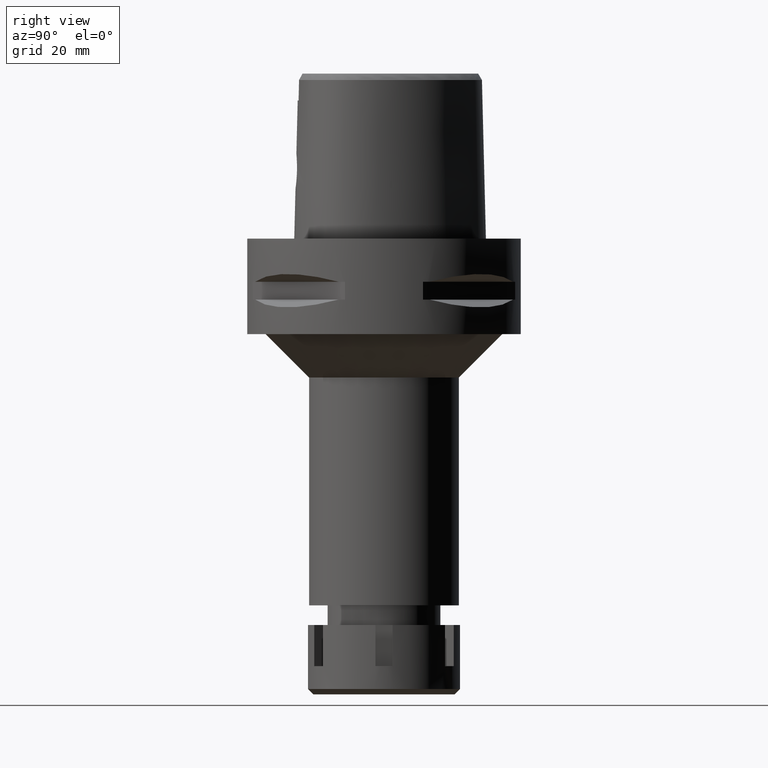
[diagram: clean part render]
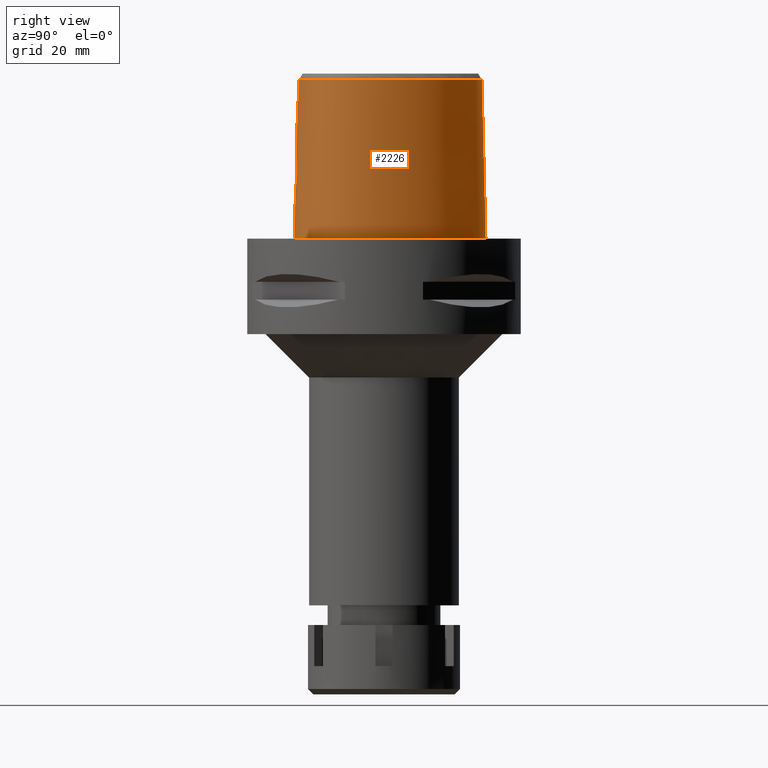
[diagram: same view with one face highlighted and labeled with its STEP entity id]
A machine part, right view. The second image highlights one B-rep face of the part: STEP entity #2226.
In plain terms, the highlighted face is a freeform B-spline surface patch.
Its self-contained STEP definition (entity closure, byte-faithful):
#16 = CARTESIAN_POINT ( 'NONE',  ( 2.808608589969339597, -20.24816661311874100, 12.58196638594038674 ) ) ;
#19 = CARTESIAN_POINT ( 'NONE',  ( 21.97832649445885522, -0.2810937470676990180, -6.704317588829104835E-07 ) ) ;
#79 = CARTESIAN_POINT ( 'NONE',  ( 11.23887130093999964, -18.91049775576999892, -0.7304374947548000208 ) ) ;
#102 = CARTESIAN_POINT ( 'NONE',  ( 22.05732875988168118, -6.847636721144406913, -6.704317588829104835E-07 ) ) ;
#103 = EDGE_CURVE ( 'NONE', #953, #2398, #1992, .T. ) ;
#104 = CARTESIAN_POINT ( 'NONE',  ( 21.26836750130999931, -8.910752271033999250, 11.93047908100000143 ) ) ;
#123 = CARTESIAN_POINT ( 'NONE',  ( 1.734379789051324838, -20.33697246834272931, 11.83436638252415030 ) ) ;
#128 = CARTESIAN_POINT ( 'NONE',  ( 18.89485298055000229, -12.27684388037000041, 37.25231223250000312 ) ) ;
#154 = CARTESIAN_POINT ( 'NONE',  ( 2.894506219204642239, -20.09690955887034036, 18.33274339089242844 ) ) ;
#185 = CARTESIAN_POINT ( 'NONE',  ( 2.871987183428478474, -20.09819914941969898, 18.35556622516749670 ) ) ;
#211 = CARTESIAN_POINT ( 'NONE',  ( 1.027682876504596221, -20.17741712424493272, 19.45809765211911113 ) ) ;
#217 = CARTESIAN_POINT ( 'NONE',  ( 2.438150638596000341, 22.68791656169999627, 24.59139565674999872 ) ) ;
#247 = CARTESIAN_POINT ( 'NONE',  ( 2.915545606163055581, -20.09570297646320469, 18.31119129212002150 ) ) ;
#252 = CARTESIAN_POINT ( 'NONE',  ( 4.750826265389000547, 21.65775817018000282, 37.25231223250000312 ) ) ;
#266 = CARTESIAN_POINT ( 'NONE',  ( -0.4439347144072000040, -19.74161855973000002, 37.25231223250000312 ) ) ;
#320 = CARTESIAN_POINT ( 'NONE',  ( 20.67704204634206278, -8.734985285293410229, 36.52186680739945501 ) ) ;
#352 = VERTEX_POINT ( 'NONE', #2081 ) ;
#369 = CARTESIAN_POINT ( 'NONE',  ( 14.17879765036999906, 15.44741200773000145, 11.93047908100000143 ) ) ;
#392 = CARTESIAN_POINT ( 'NONE',  ( 20.76670354476999947, 4.663413652418999966, -0.7304374947548000208 ) ) ;
#429 = CARTESIAN_POINT ( 'NONE',  ( 21.62788417781000305, -4.104079497439999891, 24.59139565674999872 ) ) ;
#466 = CARTESIAN_POINT ( 'NONE',  ( 2.853007646184912538, -20.24348516854156799, 12.62547111175370596 ) ) ;
#500 = CARTESIAN_POINT ( 'NONE',  ( 16.95889173633975133, -15.67838868510706973, -6.704317588829104835E-07 ) ) ;
#533 = CARTESIAN_POINT ( 'NONE',  ( 20.94844325444000077, -10.61175396809999860, -0.7304374947548000208 ) ) ;
#554 = CARTESIAN_POINT ( 'NONE',  ( 2.282207029739345305, -20.29700151028903932, 12.15162930636602745 ) ) ;
#556 = CARTESIAN_POINT ( 'NONE',  ( 2.041042029990999821E-08, -19.88004246002000031, 31.80000004972000127 ) ) ;
#558 = CARTESIAN_POINT ( 'NONE',  ( 21.94536986927999678, -4.102220498758000211, 11.93047908100000143 ) ) ;
#569 = CARTESIAN_POINT ( 'NONE',  ( 3.671249151389730514, -19.60525176641679579, 34.94790639287000289 ) ) ;
#578 = CARTESIAN_POINT ( 'NONE',  ( 4.002664568940697443, -20.07397280447635168, 14.86850854325290427 ) ) ;
#612 = CARTESIAN_POINT ( 'NONE',  ( 0.0000000000000000000, -20.18628283968999781, 19.55000000000000071 ) ) ;
#618 = CARTESIAN_POINT ( 'NONE',  ( 5.105252914380000284, 22.54305023809000019, -0.7304374947548000208 ) ) ;
#645 = CARTESIAN_POINT ( 'NONE',  ( 1.856701250897947686, -20.14848423775751129, 19.09993988373318885 ) ) ;
#651 = CARTESIAN_POINT ( 'NONE',  ( -0.4431573489233999741, 22.53713894815999907, 37.25231223250000312 ) ) ;
#677 = CARTESIAN_POINT ( 'NONE',  ( 7.259695517718999902, 20.78233578356999800, 24.59139565674999872 ) ) ;
#692 = CARTESIAN_POINT ( 'NONE',  ( -0.4520500680772000512, -20.37458455430000370, 11.93047908100000143 ) ) ;
#704 = CARTESIAN_POINT ( 'NONE',  ( 3.328551379878741834, -20.18727222454432280, 13.19186960104624440 ) ) ;
#721 = FACE_OUTER_BOUND ( 'NONE', #5571, .T. ) ;
#775 = CARTESIAN_POINT ( 'NONE',  ( 19.55745538001144368, -11.29150212658152341, 36.52186680739945501 ) ) ;
#813 = VERTEX_POINT ( 'NONE', #1455 ) ;
#825 = B_SPLINE_CURVE_WITH_KNOTS ( 'NONE', 3,
 ( #5289, #1842, #879, #4769, #4793, #500, #5232, #4815, #2243, #3090, #1336, #102, #930, #19, #4376, #1362, #1385, #3118, #960, #5176, #906, #4430, #3969 ),
 .UNSPECIFIED., .F., .F.,
 ( 4, 1, 1, 1, 1, 1, 1, 1, 1, 1, 1, 1, 1, 1, 1, 1, 1, 1, 1, 1, 4 ),
 ( 0.0000000000000000000, 0.08333333333343000138, 0.1666666666668000230, 0.2083333333333000081, 0.2500000000000000000, 0.2916666666666999919, 0.3125000000000000000, 0.3333333333333000081, 0.3541666666666999919, 0.3750000000000000000, 0.4166666666666000163, 0.4583333333332000326, 0.4999999999998999689, 0.5833333333332000326, 0.6666666666664999852, 0.7499999999998000488, 0.8333333333329999704, 0.8749999999997000177, 0.9166666666664000651, 0.9583333333329999704, 1.000000000000000000 ),
 .UNSPECIFIED. ) ;
#827 = CARTESIAN_POINT ( 'NONE',  ( 1.251533272181434064, -19.88005341395594883, 31.80000012137778498 ) ) ;
#830 = CARTESIAN_POINT ( 'NONE',  ( 6.344715575876000102, -20.31619964510000287, -0.7304374947548000208 ) ) ;
#854 = CARTESIAN_POINT ( 'NONE',  ( 20.36546124112000200, -11.75800452976000088, -0.7304374947548000208 ) ) ;
#873 = CARTESIAN_POINT ( 'NONE',  ( 2.714817435285842517, -20.25772213911197284, 12.49437854279828741 ) ) ;
#879 = CARTESIAN_POINT ( 'NONE',  ( 6.341471022189880458, -20.29812501659793256, -6.704317588829105894E-07 ) ) ;
#901 = CARTESIAN_POINT ( 'NONE',  ( 0.8988479711755551493, -20.37494334817867880, 11.54879813003848632 ) ) ;
#906 = CARTESIAN_POINT ( 'NONE',  ( 2.564517730401052020, 23.29328126649896546, -6.704317588829104835E-07 ) ) ;
#930 = CARTESIAN_POINT ( 'NONE',  ( 22.24453909536158847, -4.100468749901521548, -6.704317588829104835E-07 ) ) ;
#953 = VERTEX_POINT ( 'NONE', #4668 ) ;
#960 = CARTESIAN_POINT ( 'NONE',  ( 7.571159442842092524, 21.31457032700676635, -6.704317588829104835E-07 ) ) ;
#963 = CARTESIAN_POINT ( 'NONE',  ( 16.97022730823000103, -15.69280482749999983, -0.7304374947548000208 ) ) ;
#991 = CARTESIAN_POINT ( 'NONE',  ( 1.511996643077466507, -20.34900293593731746, 11.74281483622962696 ) ) ;
#998 = CARTESIAN_POINT ( 'NONE',  ( 14.21104808434000155, -16.40237721030999651, 37.25231223250000312 ) ) ;
#1009 = CARTESIAN_POINT ( 'NONE',  ( 3.736696120837999402, -19.67778323291999953, 31.80000004972999861 ) ) ;
#1018 = CARTESIAN_POINT ( 'NONE',  ( 3.346444325172780676, -20.07049246070072712, 17.78503332969416562 ) ) ;
#1043 = CARTESIAN_POINT ( 'NONE',  ( 1.613182323480255365, -20.15753140428501666, 19.21500890072888268 ) ) ;
#1073 = CARTESIAN_POINT ( 'NONE',  ( 3.749536200693853516, -20.04778253193094883, 17.03086640830719389 ) ) ;
#1081 = CARTESIAN_POINT ( 'NONE',  ( -0.4558512743573999715, 22.85344988486000162, 24.59139565674999872 ) ) ;
#1094 = VERTEX_POINT ( 'NONE', #3157 ) ;
#1105 = CARTESIAN_POINT ( 'NONE',  ( 3.169150985200411164, -20.20760989054334189, 12.97742286930013478 ) ) ;
#1111 = CARTESIAN_POINT ( 'NONE',  ( 4.868968481719000430, 21.95285552614999958, 24.59139565674999872 ) ) ;
#1135 = CARTESIAN_POINT ( 'NONE',  ( 4.038482247990497598, -20.06165359963866024, 15.18817721993927883 ) ) ;
#1154 = CARTESIAN_POINT ( 'NONE',  ( 13.70645019738519998, 15.04851265230584190, 36.52186680739945501 ) ) ;
#1192 = ORIENTED_EDGE ( 'NONE', *, *, #4730, .T. ) ;
#1208 = CARTESIAN_POINT ( 'NONE',  ( 21.32871516740188156, -4.105831245034571531, 36.52186680739945501 ) ) ;
#1227 = EDGE_CURVE ( 'NONE', #813, #4460, #3210, .T. ) ;
#1235 = CARTESIAN_POINT ( 'NONE',  ( -0.6779734152233000133, -20.37023491744000125, 11.93047908100000143 ) ) ;
#1264 = CARTESIAN_POINT ( 'NONE',  ( 21.44619311878999923, -6.759806577554999585, 24.59139565674999872 ) ) ;
#1288 = CARTESIAN_POINT ( 'NONE',  ( 10.34823248326000034, 18.70095511658999854, 24.59139565674999872 ) ) ;
#1303 = CARTESIAN_POINT ( 'NONE',  ( 0.5100579658808597205, -20.38531276215466548, 11.47358267918780506 ) ) ;
#1336 = CARTESIAN_POINT ( 'NONE',  ( 21.55524827622200590, -8.996025395416662462, -6.704317588829104835E-07 ) ) ;
#1362 = CARTESIAN_POINT ( 'NONE',  ( 18.06826689985112111, 10.43171875842249108, -6.704317588829104835E-07 ) ) ;
#1367 = CARTESIAN_POINT ( 'NONE',  ( 2.503154195451497532, -19.81241979351111837, 31.80000012137778498 ) ) ;
#1385 = CARTESIAN_POINT ( 'NONE',  ( 14.40795640245716669, 15.64093751087823314, -6.704317588829104835E-07 ) ) ;
#1386 = ORIENTED_EDGE ( 'NONE', *, *, #3968, .T. ) ;
#1387 = CARTESIAN_POINT ( 'NONE',  ( 16.77374388179000064, -15.44292479666999895, 11.93047908100000143 ) ) ;
#1416 = CARTESIAN_POINT ( 'NONE',  ( 20.09084481156000024, -11.59945465963000011, 11.93047908100000143 ) ) ;
#1441 = CARTESIAN_POINT ( 'NONE',  ( 3.210108431846574462, -20.20255916619523617, 13.02975361489741957 ) ) ;
#1447 = CARTESIAN_POINT ( 'NONE',  ( 19.86834447434999973, 4.339653726619999929, 37.25231223250000312 ) ) ;
#1455 = CARTESIAN_POINT ( 'NONE',  ( 2.041042029990999821E-08, -19.88004246002000031, 31.80000004972000127 ) ) ;
#1468 = CARTESIAN_POINT ( 'NONE',  ( 2.673904828757555308, -20.10928166633813419, 18.54472627324817680 ) ) ;
#1492 = CARTESIAN_POINT ( 'NONE',  ( 3.289399613302776082, -20.19244639184481116, 13.13636645578711715 ) ) ;
#1500 = CARTESIAN_POINT ( 'NONE',  ( 7.420053177767000463, 21.05635752123999893, 11.93047908100000143 ) ) ;
#1528 = CARTESIAN_POINT ( 'NONE',  ( 3.850246712485325240, -20.10780614033384239, 14.21172176748871330 ) ) ;
#1535 = CARTESIAN_POINT ( 'NONE',  ( 4.987110698050000401, 22.24795288211999988, 11.93047908100000143 ) ) ;
#1556 = ORIENTED_EDGE ( 'NONE', *, *, #3388, .T. ) ;
#1557 = CARTESIAN_POINT ( 'NONE',  ( 3.745459306425696688, -20.04797394566475077, 17.04080371184679166 ) ) ;
#1573 = CARTESIAN_POINT ( 'NONE',  ( 1.853272129619999875, -20.08023999527999592, 24.59139565674999872 ) ) ;
#1574 = CARTESIAN_POINT ( 'NONE',  ( 17.90324024158007887, -13.53935104435961989, 36.52186680739945501 ) ) ;
#1589 = CARTESIAN_POINT ( 'NONE',  ( -0.7025952909318999851, 23.15559753499000095, 11.93047908100000143 ) ) ;
#1630 = CARTESIAN_POINT ( 'NONE',  ( 16.39211273426537829, -14.95758104716071912, 36.52186680739945501 ) ) ;
#1679 = CARTESIAN_POINT ( 'NONE',  ( 11.13012658409999922, -18.61140123895000187, 11.93047908100000143 ) ) ;
#1707 = CARTESIAN_POINT ( 'NONE',  ( 10.75753573515999939, 19.18839675395999933, -0.7304374947548000208 ) ) ;
#1723 = LINE ( 'NONE', #4243, #2051 ) ;
#1809 = CARTESIAN_POINT ( 'NONE',  ( 0.2519697368789032277, -20.38876923347999082, 11.44999999999999929 ) ) ;
#1815 = CARTESIAN_POINT ( 'NONE',  ( 18.35112160369000023, -13.96357041755999973, 11.93047908100000143 ) ) ;
#1829 = CARTESIAN_POINT ( 'NONE',  ( 3.704239288984441103, -19.64128042389065598, 33.37395322129999897 ) ) ;
#1842 = CARTESIAN_POINT ( 'NONE',  ( 2.113823674063530778, -20.67500001675610122, -6.704317588829103776E-07 ) ) ;
#1845 = CARTESIAN_POINT ( 'NONE',  ( 18.58171406250000146, -14.18198046230999942, -0.7304374947548000208 ) ) ;
#1868 = CARTESIAN_POINT ( 'NONE',  ( 3.714384130429929431, -20.13065104889713552, 13.88538127549325907 ) ) ;
#1876 = CARTESIAN_POINT ( 'NONE',  ( 20.16779749782000053, 4.447573701886999409, 24.59139565674999872 ) ) ;
#1900 = CARTESIAN_POINT ( 'NONE',  ( 3.437023659240732165, -20.17240543795051266, 13.35378256598082736 ) ) ;
#1927 = CARTESIAN_POINT ( 'NONE',  ( 4.049643110176169181, -20.05399160878486242, 15.43795828968014128 ) ) ;
#1952 = CARTESIAN_POINT ( 'NONE',  ( 2.032175996666464979, -20.14130468680087915, 19.00576489869021302 ) ) ;
#1984 = CARTESIAN_POINT ( 'NONE',  ( 3.599362307144391870, -20.14875877785067004, 13.64217581319817185 ) ) ;
#1991 = CARTESIAN_POINT ( 'NONE',  ( -0.6642815438134999084, 22.52377664027000037, 37.25231223250000312 ) ) ;
#1992 = B_SPLINE_CURVE_WITH_KNOTS ( 'NONE', 3,
 ( #1009, #1829, #569, #4949 ),
 .UNSPECIFIED., .F., .F.,
 ( 4, 4 ),
 ( 0.0000000000000000000, 1.000000000000000000 ),
 .UNSPECIFIED. ) ;
#2002 = CARTESIAN_POINT ( 'NONE',  ( 1.886855603025999972, -20.71358919076999783, -0.7304374947548000208 ) ) ;
#2015 = VERTEX_POINT ( 'NONE', #2799 ) ;
#2020 = CARTESIAN_POINT ( 'NONE',  ( -0.7217521644911000234, 23.47150798234999769, -0.7304374947548000208 ) ) ;
#2051 = VECTOR ( 'NONE', #2899, 1000.000000000000227 ) ;
#2063 = CARTESIAN_POINT ( 'NONE',  ( 18.90964962507899472, -12.28759713487873562, 36.52186680739945501 ) ) ;
#2081 = CARTESIAN_POINT ( 'NONE',  ( -1.042620445671000137E-11, -20.67499999999999716, 1.284898113832999718E-13 ) ) ;
#2089 = CARTESIAN_POINT ( 'NONE',  ( 0.7901461619522839319, 22.56201467849670905, 36.52186680739945501 ) ) ;
#2111 = CARTESIAN_POINT ( 'NONE',  ( 19.40779775520000072, -12.64961932279999957, 11.93047908100000143 ) ) ;
#2136 = CARTESIAN_POINT ( 'NONE',  ( 14.42198651646999963, 15.65278599952999983, -0.7304374947548000208 ) ) ;
#2168 = CARTESIAN_POINT ( 'NONE',  ( 19.54161195244999760, -11.28235491938000123, 37.25231223250000312 ) ) ;
#2210 = CARTESIAN_POINT ( 'NONE',  ( 2.953000302317444703, -20.23281254683989161, 12.72512295698803086 ) ) ;
#2226 = ADVANCED_FACE ( 'NONE', ( #721 ), #4256, .T. ) ;
#2243 = CARTESIAN_POINT ( 'NONE',  ( 20.34961800011020472, -11.74885743026355733, -6.704317588829104835E-07 ) ) ;
#2248 = B_SPLINE_CURVE_WITH_KNOTS ( 'NONE', 3,
 ( #3867, #1367, #827, #3097 ),
 .UNSPECIFIED., .F., .F.,
 ( 4, 4 ),
 ( 0.0000000000000000000, 1.000000000000000000 ),
 .UNSPECIFIED. ) ;
#2268 = CARTESIAN_POINT ( 'NONE',  ( 20.65879056094000177, -10.48283622930000014, 11.93047908100000143 ) ) ;
#2288 = CARTESIAN_POINT ( 'NONE',  ( 2.570081009077924250, -20.27170108689831096, 12.36908902938837329 ) ) ;
#2293 = CARTESIAN_POINT ( 'NONE',  ( 21.05621926902000141, -0.4440251312345999679, 37.25231223250000312 ) ) ;
#2315 = CARTESIAN_POINT ( 'NONE',  ( 3.003234361615560122, -20.09064592609333388, 18.21745801850492441 ) ) ;
#2350 = CARTESIAN_POINT ( 'NONE',  ( 2.772326413961004654, -20.10389738242811575, 18.45539022241095850 ) ) ;
#2381 = CARTESIAN_POINT ( 'NONE',  ( 3.080229322179500517, -20.08617626112513932, 18.13071590546872969 ) ) ;
#2398 = VERTEX_POINT ( 'NONE', #4289 ) ;
#2430 = CARTESIAN_POINT ( 'NONE',  ( -0.4479923912421999721, -20.05810155700999786, 24.59139565674999872 ) ) ;
#2431 = CARTESIAN_POINT ( 'NONE',  ( 10.15538781007050595, 18.47129526703032454, 36.52186680739945501 ) ) ;
#2439 = CARTESIAN_POINT ( 'NONE',  ( 3.686910441482201151, -20.13511169299744807, 13.82359477142100523 ) ) ;
#2440 = EDGE_CURVE ( 'NONE', #1094, #5008, #1723, .T. ) ;
#2469 = ORIENTED_EDGE ( 'NONE', *, *, #4323, .T. ) ;
#2483 = CARTESIAN_POINT ( 'NONE',  ( 19.88562079788610859, 4.345879946636464375, 36.52186680739945501 ) ) ;
#2512 = CARTESIAN_POINT ( 'NONE',  ( 3.637738219117000238, -19.56971420299000286, 36.52185956443999970 ) ) ;
#2540 = CARTESIAN_POINT ( 'NONE',  ( 17.80867315177999899, 10.28184212644000084, 11.93047908100000143 ) ) ;
#2565 = CARTESIAN_POINT ( 'NONE',  ( 22.26285556075000116, -4.100361500075999643, -0.7304374947548000208 ) ) ;
#2594 = CARTESIAN_POINT ( 'NONE',  ( 19.81622838200999936, -11.44090478949999934, 24.59139565674999872 ) ) ;
#2638 = CARTESIAN_POINT ( 'NONE',  ( 2.830175095658038043, -20.24590160278928508, 12.60298252333451607 ) ) ;
#2699 = CARTESIAN_POINT ( 'NONE',  ( 6.232237611522999821, -19.68961194859000230, 24.59139565674999872 ) ) ;
#2716 = EDGE_CURVE ( 'NONE', #2015, #4460, #4506, .T. ) ;
#2721 = CARTESIAN_POINT ( 'NONE',  ( 1.537967824490479085, -20.34761404973957966, 11.75337532982781497 ) ) ;
#2726 = CARTESIAN_POINT ( 'NONE',  ( 18.12052914487000166, -13.74516037281000180, 24.59139565674999872 ) ) ;
#2743 = CARTESIAN_POINT ( 'NONE',  ( 3.644654988411417662, -20.14185568965836381, 13.73169098936010002 ) ) ;
#2748 = CARTESIAN_POINT ( 'NONE',  ( 2.568271204828000087, 23.31126237934999779, -0.7304374947548000208 ) ) ;
#2771 = CARTESIAN_POINT ( 'NONE',  ( 3.128678969656457198, -20.08334280844290021, 18.07279819847896007 ) ) ;
#2780 = CARTESIAN_POINT ( 'NONE',  ( 0.5662264690386999977, 22.56729435016999830, 37.25231223250000312 ) ) ;
#2799 = CARTESIAN_POINT ( 'NONE',  ( -1.300728010709000004E-12, -20.38876923348000147, 11.44999999999999929 ) ) ;
#2805 = CARTESIAN_POINT ( 'NONE',  ( 2.361140904827190745, -20.12552479265212568, 18.79118822093420249 ) ) ;
#2809 = CARTESIAN_POINT ( 'NONE',  ( 6.820000355845149511E-09, -19.98212988583490457, 27.71666688228263098 ) ) ;
#2837 = CARTESIAN_POINT ( 'NONE',  ( 3.860403433732510603, -20.04330035601034865, 16.72651338066180671 ) ) ;
#2842 = CARTESIAN_POINT ( 'NONE',  ( 7.580410837815001024, 21.33037925889999897, -0.7304374947548000208 ) ) ;
#2855 = CARTESIAN_POINT ( 'NONE',  ( -0.6657939585995999998, -19.73734243374999764, 37.25231223250000312 ) ) ;
#2864 = CARTESIAN_POINT ( 'NONE',  ( 4.026067555602933723, -20.04243146964289579, 16.01312629724818848 ) ) ;
#2872 = CARTESIAN_POINT ( 'NONE',  ( -0.4812391252253999663, 23.48607175824999871, -0.7304374947548000208 ) ) ;
#2884 = CARTESIAN_POINT ( 'NONE',  ( -0.6718836869113999910, -20.05378867558999900, 24.59139565674999872 ) ) ;
#2899 = DIRECTION ( 'NONE',  ( 1.954414784638959457E-12, 0.02499051290953949525, -0.9996876883629797206 ) ) ;
#2908 = CARTESIAN_POINT ( 'NONE',  ( 0.0000000000000000000, -20.18628283968999781, 19.55000000000000071 ) ) ;
#2910 = CARTESIAN_POINT ( 'NONE',  ( 17.27359236349207805, 9.972912859139480446, 36.52186680739945501 ) ) ;
#2932 = CARTESIAN_POINT ( 'NONE',  ( 7.300578979383510081, -19.07170738131100762, 36.52186680739945501 ) ) ;
#2991 = CARTESIAN_POINT ( 'NONE',  ( 21.13154903492999992, -6.714587098920000052, 37.25231223250000312 ) ) ;
#3016 = CARTESIAN_POINT ( 'NONE',  ( 1.836480392918000248, -19.76356539753000163, 37.25231223250000312 ) ) ;
#3031 = CARTESIAN_POINT ( 'NONE',  ( 2.758179676619025855, -20.25337897196585146, 12.53390918840871926 ) ) ;
#3054 = CARTESIAN_POINT ( 'NONE',  ( -1.300728010709000004E-12, -20.38876923348000147, 11.44999999999999929 ) ) ;
#3090 = CARTESIAN_POINT ( 'NONE',  ( 20.93173253746063267, -10.60431641307271988, -6.704317588829104835E-07 ) ) ;
#3097 = CARTESIAN_POINT ( 'NONE',  ( 2.041042029990999821E-08, -19.88004246002000031, 31.80000004972000127 ) ) ;
#3115 = CARTESIAN_POINT ( 'NONE',  ( 1.222756221967064905, -20.36284569854002768, 11.63840396453691106 ) ) ;
#3118 = CARTESIAN_POINT ( 'NONE',  ( 10.74572892142285419, 19.17433595040339966, -6.704317588829104835E-07 ) ) ;
#3120 = CARTESIAN_POINT ( 'NONE',  ( 21.68301109725999609, -0.3332743884345999996, 11.93047908100000143 ) ) ;
#3148 = CARTESIAN_POINT ( 'NONE',  ( 1.319600680390135450, -20.35863312411228065, 11.66994494017183293 ) ) ;
#3153 = CARTESIAN_POINT ( 'NONE',  ( 20.36913786743999921, -10.35391849049999990, 24.59139565674999872 ) ) ;
#3157 = CARTESIAN_POINT ( 'NONE',  ( -1.605369804321000336E-11, 22.56201468012000078, 36.52186680743999858 ) ) ;
#3179 = CARTESIAN_POINT ( 'NONE',  ( 3.828814954406153159, -20.04436409866706370, 16.82317999466500780 ) ) ;
#3182 = CARTESIAN_POINT ( 'NONE',  ( 21.36961518313999875, -0.3886497598345999838, 24.59139565674999872 ) ) ;
#3202 = CARTESIAN_POINT ( 'NONE',  ( 2.305334229541140534, -20.12831948498808643, 18.83048013503183427 ) ) ;
#3210 = B_SPLINE_CURVE_WITH_KNOTS ( 'NONE', 3,
 ( #556, #2809, #5375, #4515 ),
 .UNSPECIFIED., .F., .F.,
 ( 4, 4 ),
 ( 0.0000000000000000000, 1.000000000000000000 ),
 .UNSPECIFIED. ) ;
#3227 = CARTESIAN_POINT ( 'NONE',  ( 3.504989208053717054, -20.16277707627709859, 13.46647361461483783 ) ) ;
#3287 = CARTESIAN_POINT ( 'NONE',  ( 3.727121516754793973, -20.12854809717897808, 13.91496385436844463 ) ) ;
#3292 = CARTESIAN_POINT ( 'NONE',  ( 7.099337857671000229, 20.50831404591000151, 37.25231223250000312 ) ) ;
#3303 = CARTESIAN_POINT ( 'NONE',  ( 20.09619608768540644, -10.23243839430331015, 36.52186680739945501 ) ) ;
#3314 = VECTOR ( 'NONE', #4348, 1000.000000000000114 ) ;
#3333 = CARTESIAN_POINT ( 'NONE',  ( 2.376843874103407472, 22.39422497744610041, 36.52186680739945501 ) ) ;
#3358 = CARTESIAN_POINT ( 'NONE',  ( 14.22011350746495317, -16.41829354688012543, 36.52186680739945501 ) ) ;
#3388 = EDGE_CURVE ( 'NONE', #1094, #2398, #5089, .T. ) ;
#3414 = CARTESIAN_POINT ( 'NONE',  ( 14.52531267404999937, -16.95413755428000258, 11.93047908100000143 ) ) ;
#3440 = CARTESIAN_POINT ( 'NONE',  ( 10.55288410920999986, 18.94467593527999938, 11.93047908100000143 ) ) ;
#3481 = ORIENTED_EDGE ( 'NONE', *, *, #2440, .F. ) ;
#3486 = ORIENTED_EDGE ( 'NONE', *, *, #2716, .F. ) ;
#3544 = CARTESIAN_POINT ( 'NONE',  ( 6.288476593699000361, -20.00290579684000036, 11.93047908100000143 ) ) ;
#3569 = CARTESIAN_POINT ( 'NONE',  ( 21.76083720266000299, -6.805026056190000006, 11.93047908100000143 ) ) ;
#3598 = CARTESIAN_POINT ( 'NONE',  ( 4.050037399383527692, -20.04599349312611167, 15.75361975468774212 ) ) ;
#3603 = CARTESIAN_POINT ( 'NONE',  ( 20.65947772756000234, -8.729764425371000058, 37.25231223250000312 ) ) ;
#3627 = CARTESIAN_POINT ( 'NONE',  ( 3.755991642142384013, -20.04748304465439901, 17.01495889863507571 ) ) ;
#3630 = CARTESIAN_POINT ( 'NONE',  ( 0.5826623372927000055, 22.88447455774999995, 24.59139565674999872 ) ) ;
#3650 = CARTESIAN_POINT ( 'NONE',  ( 2.520050460813455295, -20.11738995382102146, 18.67115940201987456 ) ) ;
#3656 = CARTESIAN_POINT ( 'NONE',  ( 10.14358085731000081, 18.45723429790999859, 37.25231223250000312 ) ) ;
#3681 = CARTESIAN_POINT ( 'NONE',  ( 3.927790621264559245, -20.09243382075442597, 14.47756111131404744 ) ) ;
#3713 = CARTESIAN_POINT ( 'NONE',  ( 4.045013207763219931, -20.05847505278509857, 15.28275217474474346 ) ) ;
#3715 = ORIENTED_EDGE ( 'NONE', *, *, #103, .F. ) ;
#3744 = CARTESIAN_POINT ( 'NONE',  ( 0.6155340738007000212, 23.51883497290999969, -0.7304374947548000208 ) ) ;
#3815 = CARTESIAN_POINT ( 'NONE',  ( 7.108589361577616117, 20.52412316395089675, 36.52186680739945501 ) ) ;
#3840 = CARTESIAN_POINT ( 'NONE',  ( 13.93560878427000027, 15.24203801594000041, 24.59139565674999872 ) ) ;
#3867 = CARTESIAN_POINT ( 'NONE',  ( 3.736696120837999402, -19.67778323291999953, 31.80000004972999861 ) ) ;
#3871 = CARTESIAN_POINT ( 'NONE',  ( 13.69241991816999970, 15.03666402414000025, 37.25231223250000312 ) ) ;
#3898 = CARTESIAN_POINT ( 'NONE',  ( 21.31039848634000222, -4.105938496122999659, 37.25231223250000312 ) ) ;
#3912 = CARTESIAN_POINT ( 'NONE',  ( 2.396851615573344585, -20.28741283536913542, 12.23208293719065587 ) ) ;
#3936 = CARTESIAN_POINT ( 'NONE',  ( 3.042491796684531291, -20.22274507510633512, 12.82354767342773094 ) ) ;
#3968 = EDGE_CURVE ( 'NONE', #352, #5008, #825, .T. ) ;
#3969 = CARTESIAN_POINT ( 'NONE',  ( 5.534747782599000141E-11, 23.47499999999000053, 1.254922092168000080E-13 ) ) ;
#3996 = CARTESIAN_POINT ( 'NONE',  ( 14.36818037919000091, -16.67825738229999999, 24.59139565674999872 ) ) ;
#4017 = CARTESIAN_POINT ( 'NONE',  ( 2.628027080897692880, -20.26624238139288181, 12.41747670474954646 ) ) ;
#4021 = CARTESIAN_POINT ( 'NONE',  ( 20.46725052129999867, 4.555493677153000576, 11.93047908100000143 ) ) ;
#4044 = CARTESIAN_POINT ( 'NONE',  ( 2.963657114686568672, -20.09293563006364636, 18.26079471621888217 ) ) ;
#4071 = CARTESIAN_POINT ( 'NONE',  ( 2.467729343595079783, -20.12009802658495872, 18.71204267792692733 ) ) ;
#4077 = CARTESIAN_POINT ( 'NONE',  ( 0.5990982055466999023, 23.20165476532999804, 11.93047908100000143 ) ) ;
#4098 = CARTESIAN_POINT ( 'NONE',  ( 1.675120599120962339, -20.15532933629874179, 19.18749499249620172 ) ) ;
#4134 = CARTESIAN_POINT ( 'NONE',  ( -0.6834384173727000578, 22.83968708763000066, 24.59139565674999872 ) ) ;
#4157 = CARTESIAN_POINT ( 'NONE',  ( 4.048221369816548787, -20.05572751809631882, 15.37605551816500693 ) ) ;
#4200 = CARTESIAN_POINT ( 'NONE',  ( 21.14970177531143491, -6.717195943318960971, 36.52186680739945501 ) ) ;
#4243 = CARTESIAN_POINT ( 'NONE',  ( -1.605369804321000336E-11, 22.56201468012000078, 36.52186680743999858 ) ) ;
#4253 = CARTESIAN_POINT ( 'NONE',  ( 17.25769869704999948, 9.963736639704999121, 37.25231223250000312 ) ) ;
#4256 = B_SPLINE_SURFACE_WITH_KNOTS ( 'NONE', 3, 3, ( 
 ( #5077, #1235, #2884, #2855 ),
 ( #4555, #692, #2430, #266 ),
 ( #2002, #5415, #1573, #3016 ),
 ( #830, #3544, #2699, #4719 ),
 ( #79, #1679, #4818, #5291 ),
 ( #5260, #3414, #3996, #998 ),
 ( #963, #1387, #5234, #4403 ),
 ( #1845, #1815, #2726, #4277 ),
 ( #5521, #2111, #5549, #128 ),
 ( #854, #1416, #2594, #2168 ),
 ( #533, #2268, #3153, #5107 ),
 ( #4851, #104, #5131, #3603 ),
 ( #4309, #3569, #1264, #2991 ),
 ( #2565, #558, #429, #3898 ),
 ( #4431, #3120, #3182, #2293 ),
 ( #392, #4021, #1876, #1447 ),
 ( #4876, #2540, #4698, #4253 ),
 ( #2136, #369, #3840, #3871 ),
 ( #1707, #3440, #1288, #3656 ),
 ( #2842, #1500, #677, #3292 ),
 ( #618, #1535, #1111, #252 ),
 ( #2748, #4519, #217, #4578 ),
 ( #3744, #4077, #3630, #2780 ),
 ( #2872, #5429, #1081, #651 ),
 ( #2020, #1589, #4134, #1991 ) ),
 .UNSPECIFIED., .F., .F., .F.,
 ( 4, 1, 1, 1, 1, 1, 1, 1, 1, 1, 1, 1, 1, 1, 1, 1, 1, 1, 1, 1, 1, 1, 4 ),
 ( 4, 4 ),
 ( -0.008985960173581998903, 0.0000000000000000000, 0.08333333333343000138, 0.1666666666668000230, 0.2083333333333000081, 0.2500000000000000000, 0.2916666666666999919, 0.3125000000000000000, 0.3333333333333000081, 0.3541666666666999919, 0.3750000000000000000, 0.4166666666666000163, 0.4583333333332000326, 0.4999999999998999689, 0.5833333333332000326, 0.6666666666664999852, 0.7499999999998000488, 0.8333333333329999704, 0.8749999999997000177, 0.9166666666664000651, 0.9583333333329999704, 1.000000000000000000, 1.011710456763000199 ),
 ( 6.069515619267000388E-09, 0.9999996904547999721 ),
 .UNSPECIFIED. ) ;
#4277 = CARTESIAN_POINT ( 'NONE',  ( 17.88993668606000043, -13.52675032804999944, 37.25231223250000312 ) ) ;
#4289 = CARTESIAN_POINT ( 'NONE',  ( 3.637738219117000238, -19.56971420299000286, 36.52185956443999970 ) ) ;
#4309 = CARTESIAN_POINT ( 'NONE',  ( 22.07548128651999875, -6.850245534824999538, -0.7304374947548000208 ) ) ;
#4323 = EDGE_CURVE ( 'NONE', #2015, #352, #5169, .T. ) ;
#4348 = DIRECTION ( 'NONE',  ( -7.967359348042830812E-13, -0.02499051295360945474, -0.9996876883618780463 ) ) ;
#4350 = CARTESIAN_POINT ( 'NONE',  ( 2.844541275131344360, -20.24438467540250031, 12.61708719065900652 ) ) ;
#4376 = CARTESIAN_POINT ( 'NONE',  ( 20.74942742465746193, 4.657187505714481368, -6.704317588829104835E-07 ) ) ;
#4403 = CARTESIAN_POINT ( 'NONE',  ( 16.38077702889999898, -14.94316473501999987, 37.25231223250000312 ) ) ;
#4425 = CARTESIAN_POINT ( 'NONE',  ( 1.527965580144372781, -20.34815231994708995, 11.74928068373174206 ) ) ;
#4430 = CARTESIAN_POINT ( 'NONE',  ( 0.8548392434961373798, 23.47500001676050374, -6.704317588829104835E-07 ) ) ;
#4431 = CARTESIAN_POINT ( 'NONE',  ( 21.99640701136999610, -0.2778990170345999600, -0.7304374947548000208 ) ) ;
#4451 = CARTESIAN_POINT ( 'NONE',  ( 3.664274183418350983, -20.05181531545110829, 17.23726368441676016 ) ) ;
#4460 = VERTEX_POINT ( 'NONE', #2908 ) ;
#4482 = CARTESIAN_POINT ( 'NONE',  ( 1.583085234474576497, -20.15857747892414764, 19.22794739783265072 ) ) ;
#4506 = B_SPLINE_CURVE_WITH_KNOTS ( 'NONE', 3,
 ( #5254, #1809, #1303, #901, #5230, #3115, #3148, #4813, #4846, #991, #4425, #2721, #123, #4733, #554, #3912, #2288, #4017, #873, #3031, #16, #2638, #4350, #466, #2210, #3936, #1105, #1441, #1492, #704, #1900, #3227, #1984, #2743, #2439, #1868, #3287, #1528, #3681, #578, #5400, #1135, #3713, #4157, #1927, #5338, #3598, #2864, #4569, #4959, #2837, #3179, #4928, #5286, #3627, #1073, #1557, #4451, #4871, #1018, #4983, #2771, #2381, #2315, #4044, #247, #154, #5316, #185, #2350, #1468, #3650, #4071, #2805, #3202, #4513, #1952, #645, #4897, #4098, #1043, #4482, #211, #4541, #612 ),
 .UNSPECIFIED., .F., .F.,
 ( 4, 2, 2, 1, 1, 1, 2, 2, 2, 2, 2, 1, 1, 2, 2, 2, 2, 2, 2, 1, 2, 2, 2, 2, 1, 2, 2, 2, 2, 1, 1, 1, 2, 2, 2, 2, 2, 1, 1, 2, 2, 2, 2, 2, 2, 1, 2, 2, 4 ),
 ( 0.0000000000000000000, 0.06249999999998684386, 0.09374999999998025191, 0.1093749999999769490, 0.1171874999999752281, 0.1210937499999743677, 0.1230468749999739514, 0.1249999999999735212, 0.1874999999999596434, 0.2187499999999525657, 0.2343749999999491518, 0.2421874999999475697, 0.2460937499999466815, 0.2480468749999463207, 0.2499999999999459599, 0.2812499999999397704, 0.2968749999999366618, 0.3124999999999336087, 0.3437499999999270583, 0.3593749999999237832, 0.3671874999999221734, 0.3749999999999205080, 0.4374999999999077960, 0.4687499999999013567, 0.4843749999998983591, 0.4921874999998971378, 0.4999999999998958611, 0.5624999999998850919, 0.5937499999998797628, 0.6093749999998772093, 0.6171874999998758771, 0.6210937499998750999, 0.6230468749998752109, 0.6249999999998752109, 0.6874999999998876454, 0.7187499999998935296, 0.7343749999998965272, 0.7421874999998981925, 0.7460937499998989697, 0.7480468749998995248, 0.7499999999998999689, 0.7812499999999118483, 0.7968749999999177325, 0.8124999999999236167, 0.8437499999999354960, 0.8593749999999416023, 0.8671874999999445999, 0.8749999999999475975, 1.000000000000000000 ),
 .UNSPECIFIED. ) ;
#4513 = CARTESIAN_POINT ( 'NONE',  ( 2.144427845708294811, -20.13626349860851761, 18.93810770242787811 ) ) ;
#4515 = CARTESIAN_POINT ( 'NONE',  ( 0.0000000000000000000, -20.18628283968999781, 19.55000000000000071 ) ) ;
#4519 = CARTESIAN_POINT ( 'NONE',  ( 2.503210921711999770, 22.99958947052999747, 11.93047908100000143 ) ) ;
#4541 = CARTESIAN_POINT ( 'NONE',  ( 0.4948470747602090603, -20.18628283969000137, 19.54999999999999361 ) ) ;
#4545 = CARTESIAN_POINT ( 'NONE',  ( 5.534747782599000141E-11, 23.47499999999000053, 1.254922092168000080E-13 ) ) ;
#4555 = CARTESIAN_POINT ( 'NONE',  ( -0.4561077449121999638, -20.69106755158000155, -0.7304374947548000208 ) ) ;
#4558 = CARTESIAN_POINT ( 'NONE',  ( 4.757642236485025045, 21.67478320247824897, 36.52186680739945501 ) ) ;
#4569 = CARTESIAN_POINT ( 'NONE',  ( 3.950323019394554880, -20.04135421479659840, 16.40274729700125178 ) ) ;
#4578 = CARTESIAN_POINT ( 'NONE',  ( 2.373090355478999935, 22.37624365287000217, 37.25231223250000312 ) ) ;
#4668 = CARTESIAN_POINT ( 'NONE',  ( 3.736696120837999402, -19.67778323291999953, 31.80000004972999861 ) ) ;
#4698 = CARTESIAN_POINT ( 'NONE',  ( 17.53318592441999968, 10.12278938307000153, 24.59139565674999872 ) ) ;
#4719 = CARTESIAN_POINT ( 'NONE',  ( 6.175998629347000168, -19.37631810034000068, 37.25231223250000312 ) ) ;
#4730 = EDGE_CURVE ( 'NONE', #953, #813, #2248, .T. ) ;
#4733 = CARTESIAN_POINT ( 'NONE',  ( 1.946611601990726692, -20.32311006286680310, 11.93862046598383309 ) ) ;
#4769 = CARTESIAN_POINT ( 'NONE',  ( 11.23259757303450890, -18.89324220332994742, -6.704317588829104835E-07 ) ) ;
#4793 = CARTESIAN_POINT ( 'NONE',  ( 14.67337965251771514, -17.21410157711000721, -6.704317588829104835E-07 ) ) ;
#4813 = CARTESIAN_POINT ( 'NONE',  ( 1.432005274344079204, -20.35315137661976692, 11.71134280122707594 ) ) ;
#4815 = CARTESIAN_POINT ( 'NONE',  ( 19.64947367221709129, -12.82525391612707466, -6.704317588829104835E-07 ) ) ;
#4818 = CARTESIAN_POINT ( 'NONE',  ( 11.02138186727000146, -18.31230472213000127, 24.59139565674999872 ) ) ;
#4846 = CARTESIAN_POINT ( 'NONE',  ( 1.488028627205681520, -20.35026873354180310, 11.73319909950357953 ) ) ;
#4851 = CARTESIAN_POINT ( 'NONE',  ( 21.57281238819000180, -9.001246193864998801, -0.7304374947548000208 ) ) ;
#4871 = CARTESIAN_POINT ( 'NONE',  ( 3.559803832323797046, -20.05788146350401746, 17.44950363748058209 ) ) ;
#4876 = CARTESIAN_POINT ( 'NONE',  ( 18.08416037915000274, 10.44089486980999837, -0.7304374947548000208 ) ) ;
#4897 = CARTESIAN_POINT ( 'NONE',  ( 1.767192251251785917, -20.15197845540285471, 19.14519926632054947 ) ) ;
#4928 = CARTESIAN_POINT ( 'NONE',  ( 3.787426346249940234, -20.04607170149546391, 16.93525315950587995 ) ) ;
#4949 = CARTESIAN_POINT ( 'NONE',  ( 3.637738219117000238, -19.56971420299000286, 36.52185956443999970 ) ) ;
#4959 = CARTESIAN_POINT ( 'NONE',  ( 3.918456791367075809, -20.04170609324424390, 16.53266420033527595 ) ) ;
#4983 = CARTESIAN_POINT ( 'NONE',  ( 3.265869583385797359, -20.07528142228585821, 17.89964299956978167 ) ) ;
#4999 = CARTESIAN_POINT ( 'NONE',  ( 4.467522181836418582, -19.48130276147781004, 36.52186680739945501 ) ) ;
#5008 = VERTEX_POINT ( 'NONE', #4545 ) ;
#5052 = CARTESIAN_POINT ( 'NONE',  ( 10.91891095220763930, -18.03046396093144210, 36.52186680739945501 ) ) ;
#5056 = ORIENTED_EDGE ( 'NONE', *, *, #1227, .T. ) ;
#5077 = CARTESIAN_POINT ( 'NONE',  ( -0.6840631435351000045, -20.68668115928999995, -0.7304374947548000208 ) ) ;
#5089 = B_SPLINE_CURVE_WITH_KNOTS ( 'NONE', 3,
 ( #5442, #2089, #3333, #4558, #3815, #2431, #1154, #2910, #2483, #5472, #1208, #4200, #320, #3303, #775, #2063, #1574, #1630, #3358, #5052, #2932, #4999, #2512 ),
 .UNSPECIFIED., .F., .F.,
 ( 4, 1, 1, 1, 1, 1, 1, 1, 1, 1, 1, 1, 1, 1, 1, 1, 1, 1, 1, 1, 4 ),
 ( 0.0000000000000000000, 0.04382683003322273424, 0.08765366006602459681, 0.1314804900989317848, 0.1753073201318390006, 0.2629609801974428507, 0.3506146402631520331, 0.4382683003288611046, 0.5259219603945702870, 0.5697487904274773918, 0.6135756204602793584, 0.6574024504930813251, 0.6793158655094821974, 0.7012292805259885409, 0.7231426955423894132, 0.7450561105587903965, 0.7888829405916976123, 0.8327097706246047171, 0.8765366006573015456, 0.9641902607230843358, 1.000000000000000000 ),
 .UNSPECIFIED. ) ;
#5107 = CARTESIAN_POINT ( 'NONE',  ( 20.07948517394000376, -10.22500075169999967, 37.25231223250000312 ) ) ;
#5131 = CARTESIAN_POINT ( 'NONE',  ( 20.96392261443000393, -8.820258348201999610, 24.59139565674999872 ) ) ;
#5169 = LINE ( 'NONE', #3054, #3314 ) ;
#5176 = CARTESIAN_POINT ( 'NONE',  ( 5.098437023540008717, 22.52602540625645133, -6.704317588829104835E-07 ) ) ;
#5230 = CARTESIAN_POINT ( 'NONE',  ( 1.028701314430592317, -20.37062275902201947, 11.58049741886263284 ) ) ;
#5232 = CARTESIAN_POINT ( 'NONE',  ( 18.56841066362533610, -14.16937989437063194, -6.704317588829104835E-07 ) ) ;
#5234 = CARTESIAN_POINT ( 'NONE',  ( 16.57726045535000026, -15.19304476584999897, 24.59139565674999872 ) ) ;
#5254 = CARTESIAN_POINT ( 'NONE',  ( -1.300728010709000004E-12, -20.38876923348000147, 11.44999999999999929 ) ) ;
#5260 = CARTESIAN_POINT ( 'NONE',  ( 14.68244496890000050, -17.23001772626999895, -0.7304374947548000208 ) ) ;
#5286 = CARTESIAN_POINT ( 'NONE',  ( 3.765593220699522181, -20.04704214534188367, 16.99108095766886350 ) ) ;
#5289 = CARTESIAN_POINT ( 'NONE',  ( -1.042620445671000137E-11, -20.67499999999999716, 1.284898113832999718E-13 ) ) ;
#5291 = CARTESIAN_POINT ( 'NONE',  ( 10.91263715042999927, -18.01320820530999711, 37.25231223250000312 ) ) ;
#5316 = CARTESIAN_POINT ( 'NONE',  ( 2.880386059684364231, -20.09771851976561052, 18.34709984349601442 ) ) ;
#5338 = CARTESIAN_POINT ( 'NONE',  ( 4.049995275655165372, -20.05320010482861548, 15.46762644421465183 ) ) ;
#5375 = CARTESIAN_POINT ( 'NONE',  ( 6.839970278757620539E-09, -20.08420636276298055, 23.63333344114143486 ) ) ;
#5400 = CARTESIAN_POINT ( 'NONE',  ( 4.020738798783059842, -20.06858537623217842, 14.99755720130812975 ) ) ;
#5415 = CARTESIAN_POINT ( 'NONE',  ( 1.870063866323000035, -20.39691459301999998, 11.93047908100000143 ) ) ;
#5429 = CARTESIAN_POINT ( 'NONE',  ( -0.4685451997914000244, 23.16976082155000327, 11.93047908100000143 ) ) ;
#5442 = CARTESIAN_POINT ( 'NONE',  ( -1.605369804321000336E-11, 22.56201468012000078, 36.52186680743999858 ) ) ;
#5472 = CARTESIAN_POINT ( 'NONE',  ( 21.07429999882692329, -0.4408303635840613577, 36.52186680739945501 ) ) ;
#5521 = CARTESIAN_POINT ( 'NONE',  ( 19.66427014251999950, -12.83600704401999870, -0.7304374947548000208 ) ) ;
#5549 = CARTESIAN_POINT ( 'NONE',  ( 19.15132536786999751, -12.46323160157999865, 24.59139565674999872 ) ) ;
#5571 = EDGE_LOOP ( 'NONE', ( #3481, #1556, #3715, #1192, #5056, #3486, #2469, #1386 ) ) ;